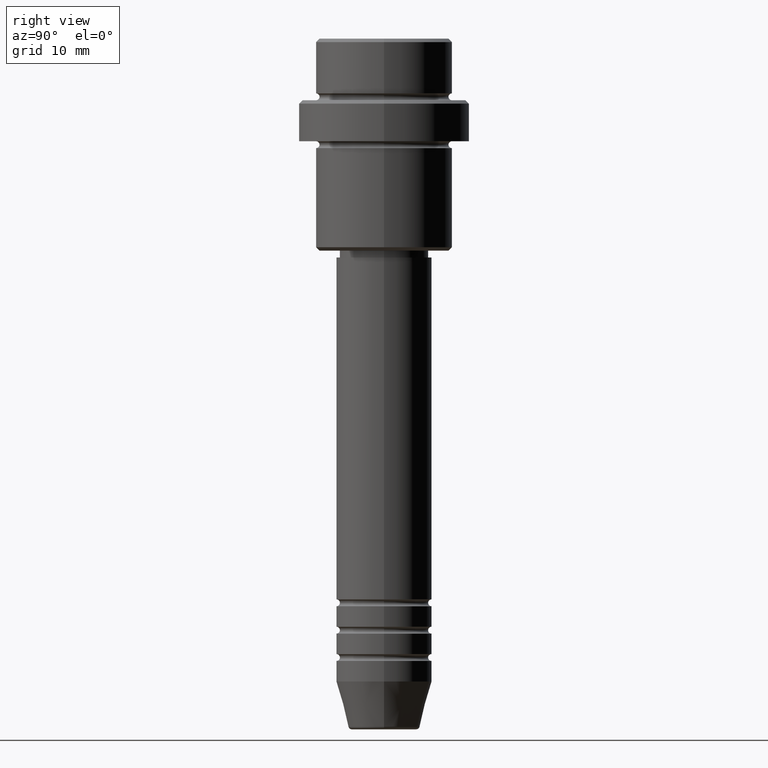
[diagram: clean part render]
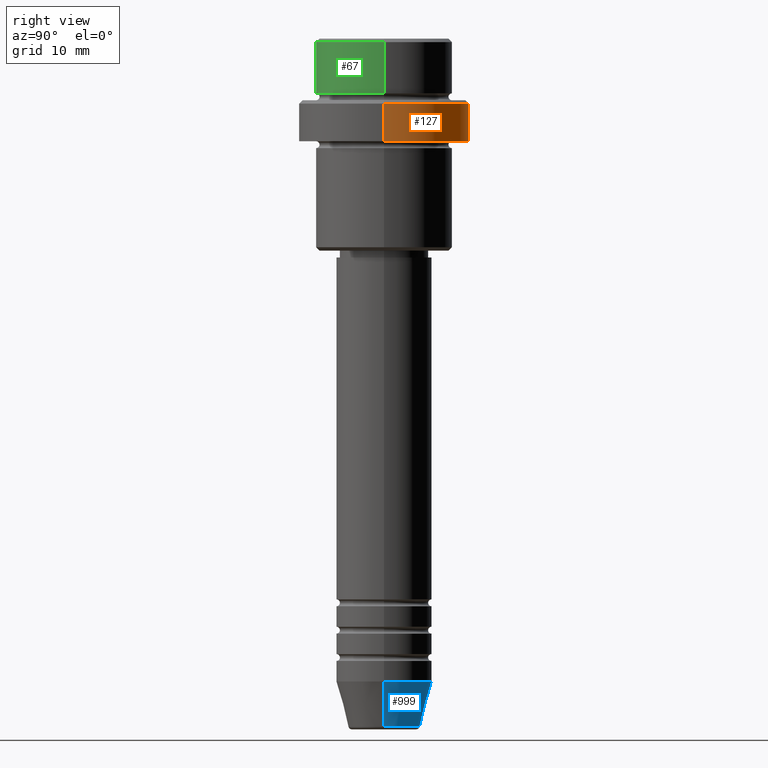
[diagram: same view with three faces highlighted in distinct colors, each labeled with its STEP entity id]
A machine part, right view with three faces highlighted in distinct colors.
Their STEP definitions:

[orange] entity #127 — the highlighted cylindrical surface (partial cylindrical patch) has radius 12.5 mm, axis along (-0, -0, 1).
#29 = VERTEX_POINT ( 'NONE', #1251 ) ;
#87 = AXIS2_PLACEMENT_3D ( 'NONE', #1032, #1127, #590 ) ;
#127 = ADVANCED_FACE ( 'NONE', ( #524 ), #1041, .T. ) ;
#157 = VERTEX_POINT ( 'NONE', #725 ) ;
#183 = CARTESIAN_POINT ( 'NONE',  ( -12.50000000000000000, 1.530808498934191521E-15, 0.000000000000000000 ) ) ;
#195 = DIRECTION ( 'NONE',  ( -0.000000000000000000, -0.000000000000000000, 1.000000000000000000 ) ) ;
#218 = AXIS2_PLACEMENT_3D ( 'NONE', #1050, #814, #1266 ) ;
#384 = LINE ( 'NONE', #617, #778 ) ;
#402 = CARTESIAN_POINT ( 'NONE',  ( 12.50000000000000000, 0.000000000000000000, -15.00000000000000000 ) ) ;
#524 = FACE_OUTER_BOUND ( 'NONE', #1355, .T. ) ;
#565 = VECTOR ( 'NONE', #1370, 1000.000000000000000 ) ;
#590 = DIRECTION ( 'NONE',  ( 1.000000000000000000, 0.000000000000000000, 0.000000000000000000 ) ) ;
#617 = CARTESIAN_POINT ( 'NONE',  ( 12.50000000000000000, 0.000000000000000000, 0.000000000000000000 ) ) ;
#620 = EDGE_CURVE ( 'NONE', #29, #157, #1177, .T. ) ;
#672 = CIRCLE ( 'NONE', #87, 12.50000000000000000 ) ;
#704 = ORIENTED_EDGE ( 'NONE', *, *, #1122, .T. ) ;
#725 = CARTESIAN_POINT ( 'NONE',  ( 12.50000000000000000, 0.000000000000000000, -9.500000000000005329 ) ) ;
#734 = ORIENTED_EDGE ( 'NONE', *, *, #620, .T. ) ;
#778 = VECTOR ( 'NONE', #1277, 1000.000000000000000 ) ;
#814 = DIRECTION ( 'NONE',  ( 0.000000000000000000, 0.000000000000000000, -1.000000000000000000 ) ) ;
#843 = DIRECTION ( 'NONE',  ( 1.000000000000000000, 0.000000000000000000, 0.000000000000000000 ) ) ;
#909 = EDGE_CURVE ( 'NONE', #1192, #947, #672, .T. ) ;
#947 = VERTEX_POINT ( 'NONE', #1142 ) ;
#987 = ORIENTED_EDGE ( 'NONE', *, *, #1076, .F. ) ;
#1032 = CARTESIAN_POINT ( 'NONE',  ( 0.000000000000000000, 0.000000000000000000, -15.00000000000000000 ) ) ;
#1041 = CYLINDRICAL_SURFACE ( 'NONE', #1290, 12.50000000000000000 ) ;
#1050 = CARTESIAN_POINT ( 'NONE',  ( 0.000000000000000000, 0.000000000000000000, -9.500000000000005329 ) ) ;
#1076 = EDGE_CURVE ( 'NONE', #1192, #157, #384, .T. ) ;
#1089 = ORIENTED_EDGE ( 'NONE', *, *, #909, .T. ) ;
#1122 = EDGE_CURVE ( 'NONE', #947, #29, #1133, .T. ) ;
#1127 = DIRECTION ( 'NONE',  ( -0.000000000000000000, -0.000000000000000000, 1.000000000000000000 ) ) ;
#1133 = LINE ( 'NONE', #183, #565 ) ;
#1142 = CARTESIAN_POINT ( 'NONE',  ( -12.50000000000000000, 1.530808498934191521E-15, -15.00000000000000000 ) ) ;
#1177 = CIRCLE ( 'NONE', #218, 12.50000000000000000 ) ;
#1192 = VERTEX_POINT ( 'NONE', #402 ) ;
#1251 = CARTESIAN_POINT ( 'NONE',  ( -12.50000000000000000, 1.530808498934191521E-15, -9.500000000000005329 ) ) ;
#1266 = DIRECTION ( 'NONE',  ( 1.000000000000000000, 0.000000000000000000, 0.000000000000000000 ) ) ;
#1277 = DIRECTION ( 'NONE',  ( -0.000000000000000000, -0.000000000000000000, 1.000000000000000000 ) ) ;
#1290 = AXIS2_PLACEMENT_3D ( 'NONE', #1380, #195, #843 ) ;
#1355 = EDGE_LOOP ( 'NONE', ( #1089, #704, #734, #987 ) ) ;
#1370 = DIRECTION ( 'NONE',  ( -0.000000000000000000, -0.000000000000000000, 1.000000000000000000 ) ) ;
#1380 = CARTESIAN_POINT ( 'NONE',  ( 0.000000000000000000, 0.000000000000000000, 0.000000000000000000 ) ) ;

[blue] entity #999 — the highlighted conical surface has half-angle 15 deg.
#42 = EDGE_LOOP ( 'NONE', ( #331, #568, #931, #238 ) ) ;
#47 = DIRECTION ( 'NONE',  ( -0.2588190451025214056, 3.169619151431772953E-17, 0.9659258262890680902 ) ) ;
#104 = CARTESIAN_POINT ( 'NONE',  ( 0.000000000000000000, 0.000000000000000000, -94.00000000000000000 ) ) ;
#238 = ORIENTED_EDGE ( 'NONE', *, *, #487, .F. ) ;
#311 = DIRECTION ( 'NONE',  ( -0.000000000000000000, -0.000000000000000000, 1.000000000000000000 ) ) ;
#312 = VERTEX_POINT ( 'NONE', #937 ) ;
#329 = DIRECTION ( 'NONE',  ( 1.000000000000000000, 0.000000000000000000, 0.000000000000000000 ) ) ;
#331 = ORIENTED_EDGE ( 'NONE', *, *, #340, .T. ) ;
#340 = EDGE_CURVE ( 'NONE', #1388, #312, #938, .T. ) ;
#353 = DIRECTION ( 'NONE',  ( 0.2588190451025214056, 0.000000000000000000, 0.9659258262890680902 ) ) ;
#366 = EDGE_CURVE ( 'NONE', #1189, #1248, #648, .T. ) ;
#399 = CARTESIAN_POINT ( 'NONE',  ( 0.000000000000000000, 0.000000000000000000, -94.00000000000000000 ) ) ;
#487 = EDGE_CURVE ( 'NONE', #1388, #1189, #879, .T. ) ;
#517 = AXIS2_PLACEMENT_3D ( 'NONE', #104, #1300, #329 ) ;
#568 = ORIENTED_EDGE ( 'NONE', *, *, #1262, .T. ) ;
#648 = CIRCLE ( 'NONE', #1198, 7.000000000000000000 ) ;
#674 = VECTOR ( 'NONE', #47, 1000.000000000000000 ) ;
#723 = DIRECTION ( 'NONE',  ( -0.000000000000000000, -0.000000000000000000, 1.000000000000000000 ) ) ;
#739 = DIRECTION ( 'NONE',  ( 1.000000000000000000, 0.000000000000000000, 0.000000000000000000 ) ) ;
#745 = FACE_OUTER_BOUND ( 'NONE', #42, .T. ) ;
#781 = LINE ( 'NONE', #1155, #674 ) ;
#821 = DIRECTION ( 'NONE',  ( 1.000000000000000000, 0.000000000000000000, 0.000000000000000000 ) ) ;
#879 = LINE ( 'NONE', #1327, #1059 ) ;
#931 = ORIENTED_EDGE ( 'NONE', *, *, #366, .F. ) ;
#937 = CARTESIAN_POINT ( 'NONE',  ( -5.223655072137187716, 7.484830028987059188E-16, -100.6294095225512706 ) ) ;
#938 = CIRCLE ( 'NONE', #1149, 5.223655072137187716 ) ;
#998 = CONICAL_SURFACE ( 'NONE', #517, 7.000000000000000000, 0.2617993877991501295 ) ;
#999 = ADVANCED_FACE ( 'NONE', ( #745 ), #998, .T. ) ;
#1042 = CARTESIAN_POINT ( 'NONE',  ( 7.000000000000000000, 0.000000000000000000, -94.00000000000000000 ) ) ;
#1059 = VECTOR ( 'NONE', #353, 1000.000000000000000 ) ;
#1149 = AXIS2_PLACEMENT_3D ( 'NONE', #1286, #311, #739 ) ;
#1155 = CARTESIAN_POINT ( 'NONE',  ( -7.000000000000000000, 8.572527594031473190E-16, -94.00000000000000000 ) ) ;
#1189 = VERTEX_POINT ( 'NONE', #1042 ) ;
#1198 = AXIS2_PLACEMENT_3D ( 'NONE', #399, #723, #821 ) ;
#1248 = VERTEX_POINT ( 'NONE', #1320 ) ;
#1262 = EDGE_CURVE ( 'NONE', #312, #1248, #781, .T. ) ;
#1286 = CARTESIAN_POINT ( 'NONE',  ( 0.000000000000000000, 0.000000000000000000, -100.6294095225512706 ) ) ;
#1300 = DIRECTION ( 'NONE',  ( -0.000000000000000000, -0.000000000000000000, 1.000000000000000000 ) ) ;
#1320 = CARTESIAN_POINT ( 'NONE',  ( -7.000000000000000000, 8.572527594031473190E-16, -94.00000000000000000 ) ) ;
#1327 = CARTESIAN_POINT ( 'NONE',  ( 7.000000000000000000, 0.000000000000000000, -94.00000000000000000 ) ) ;
#1329 = CARTESIAN_POINT ( 'NONE',  ( 5.223655072137187716, 0.000000000000000000, -100.6294095225512706 ) ) ;
#1388 = VERTEX_POINT ( 'NONE', #1329 ) ;

[green] entity #67 — the highlighted cylindrical surface (partial cylindrical patch) has radius 10 mm, axis along (-0, -0, 1).
#55 = EDGE_CURVE ( 'NONE', #1348, #685, #513, .T. ) ;
#58 = CARTESIAN_POINT ( 'NONE',  ( 9.999999999999998224, 0.000000000000000000, 0.000000000000000000 ) ) ;
#67 = ADVANCED_FACE ( 'NONE', ( #1400 ), #957, .T. ) ;
#71 = DIRECTION ( 'NONE',  ( 1.000000000000000000, 0.000000000000000000, 0.000000000000000000 ) ) ;
#174 = VECTOR ( 'NONE', #1163, 1000.000000000000000 ) ;
#176 = CARTESIAN_POINT ( 'NONE',  ( -9.999999999999998224, 1.224646799147353059E-15, 0.000000000000000000 ) ) ;
#188 = DIRECTION ( 'NONE',  ( 1.000000000000000000, 0.000000000000000000, 0.000000000000000000 ) ) ;
#270 = AXIS2_PLACEMENT_3D ( 'NONE', #1367, #381, #288 ) ;
#274 = EDGE_LOOP ( 'NONE', ( #952, #464, #979, #1294 ) ) ;
#288 = DIRECTION ( 'NONE',  ( 1.000000000000000000, 0.000000000000000000, 0.000000000000000000 ) ) ;
#307 = DIRECTION ( 'NONE',  ( -0.000000000000000000, -0.000000000000000000, 1.000000000000000000 ) ) ;
#354 = VERTEX_POINT ( 'NONE', #1152 ) ;
#381 = DIRECTION ( 'NONE',  ( -0.000000000000000000, -0.000000000000000000, 1.000000000000000000 ) ) ;
#411 = LINE ( 'NONE', #58, #735 ) ;
#464 = ORIENTED_EDGE ( 'NONE', *, *, #807, .T. ) ;
#507 = DIRECTION ( 'NONE',  ( -0.000000000000000000, -0.000000000000000000, 1.000000000000000000 ) ) ;
#513 = LINE ( 'NONE', #176, #174 ) ;
#647 = CARTESIAN_POINT ( 'NONE',  ( -9.999999999999998224, 1.224646799147353059E-15, -0.4999999999999970024 ) ) ;
#685 = VERTEX_POINT ( 'NONE', #647 ) ;
#695 = CIRCLE ( 'NONE', #1298, 9.999999999999998224 ) ;
#735 = VECTOR ( 'NONE', #507, 1000.000000000000000 ) ;
#757 = CIRCLE ( 'NONE', #270, 9.999999999999998224 ) ;
#798 = CARTESIAN_POINT ( 'NONE',  ( 0.000000000000000000, 0.000000000000000000, -0.4999999999999970024 ) ) ;
#802 = EDGE_CURVE ( 'NONE', #1001, #354, #411, .T. ) ;
#807 = EDGE_CURVE ( 'NONE', #1348, #1001, #757, .T. ) ;
#827 = DIRECTION ( 'NONE',  ( 0.000000000000000000, 0.000000000000000000, -1.000000000000000000 ) ) ;
#943 = CARTESIAN_POINT ( 'NONE',  ( 0.000000000000000000, 0.000000000000000000, 0.000000000000000000 ) ) ;
#952 = ORIENTED_EDGE ( 'NONE', *, *, #55, .F. ) ;
#957 = CYLINDRICAL_SURFACE ( 'NONE', #1057, 9.999999999999998224 ) ;
#979 = ORIENTED_EDGE ( 'NONE', *, *, #802, .T. ) ;
#1001 = VERTEX_POINT ( 'NONE', #1188 ) ;
#1057 = AXIS2_PLACEMENT_3D ( 'NONE', #943, #307, #188 ) ;
#1152 = CARTESIAN_POINT ( 'NONE',  ( 9.999999999999998224, 0.000000000000000000, -0.4999999999999970024 ) ) ;
#1163 = DIRECTION ( 'NONE',  ( -0.000000000000000000, -0.000000000000000000, 1.000000000000000000 ) ) ;
#1188 = CARTESIAN_POINT ( 'NONE',  ( 9.999999999999998224, 0.000000000000000000, -7.999999999999998224 ) ) ;
#1199 = EDGE_CURVE ( 'NONE', #354, #685, #695, .T. ) ;
#1294 = ORIENTED_EDGE ( 'NONE', *, *, #1199, .T. ) ;
#1298 = AXIS2_PLACEMENT_3D ( 'NONE', #798, #827, #71 ) ;
#1348 = VERTEX_POINT ( 'NONE', #1372 ) ;
#1367 = CARTESIAN_POINT ( 'NONE',  ( 0.000000000000000000, 0.000000000000000000, -7.999999999999998224 ) ) ;
#1372 = CARTESIAN_POINT ( 'NONE',  ( -9.999999999999998224, 1.224646799147353059E-15, -7.999999999999998224 ) ) ;
#1400 = FACE_OUTER_BOUND ( 'NONE', #274, .T. ) ;